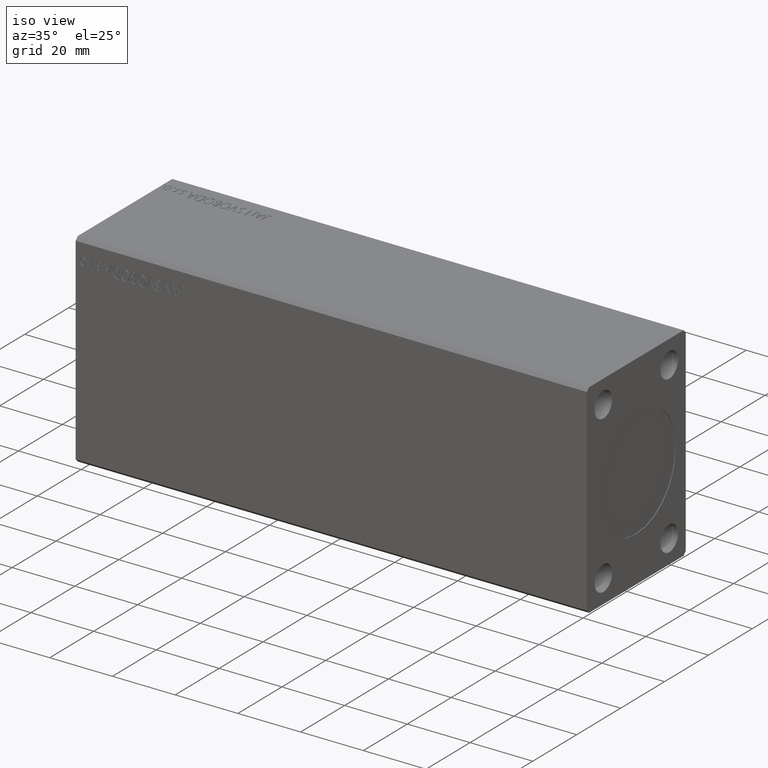
[diagram: clean part render]
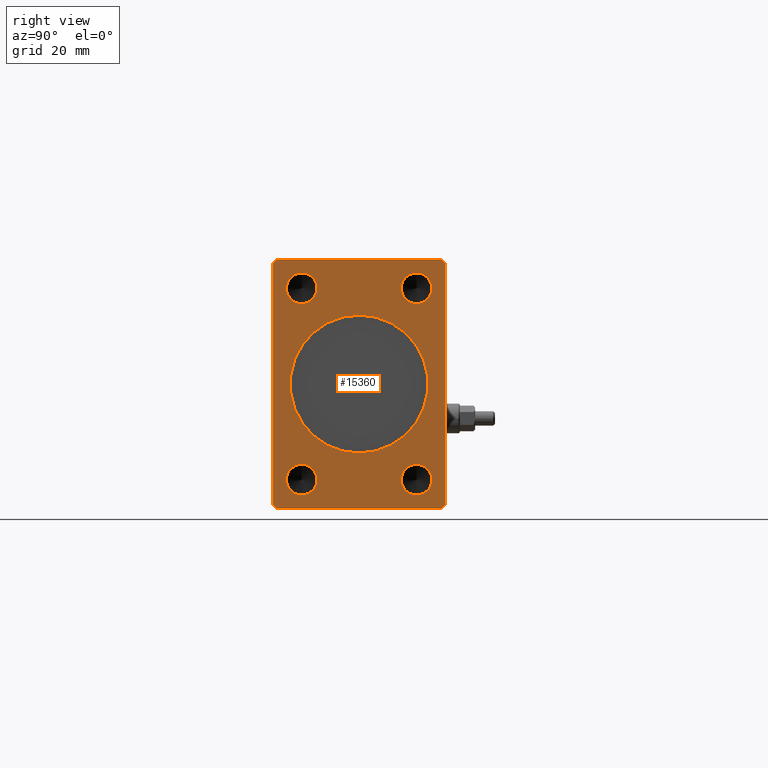
[diagram: tour spotlight — one face highlighted and labeled with its STEP entity id]
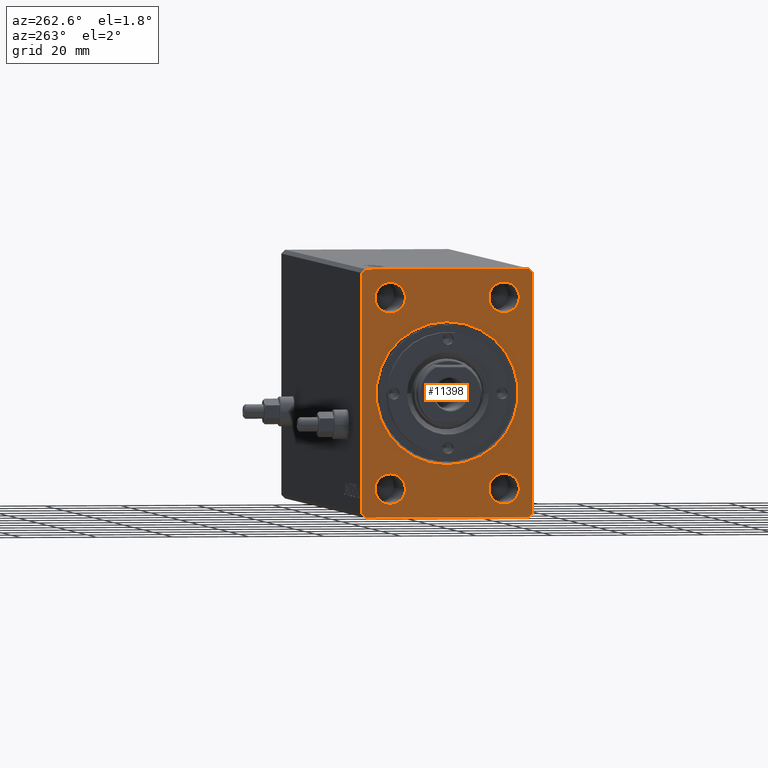
[diagram: tour spotlight — one face highlighted and labeled with its STEP entity id]
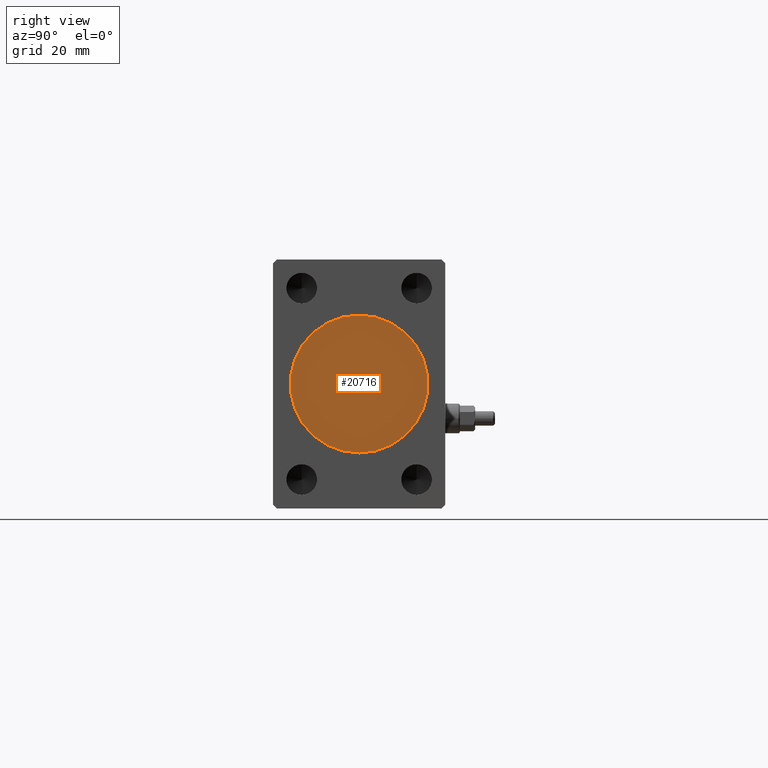
[diagram: tour spotlight — one face highlighted and labeled with its STEP entity id]
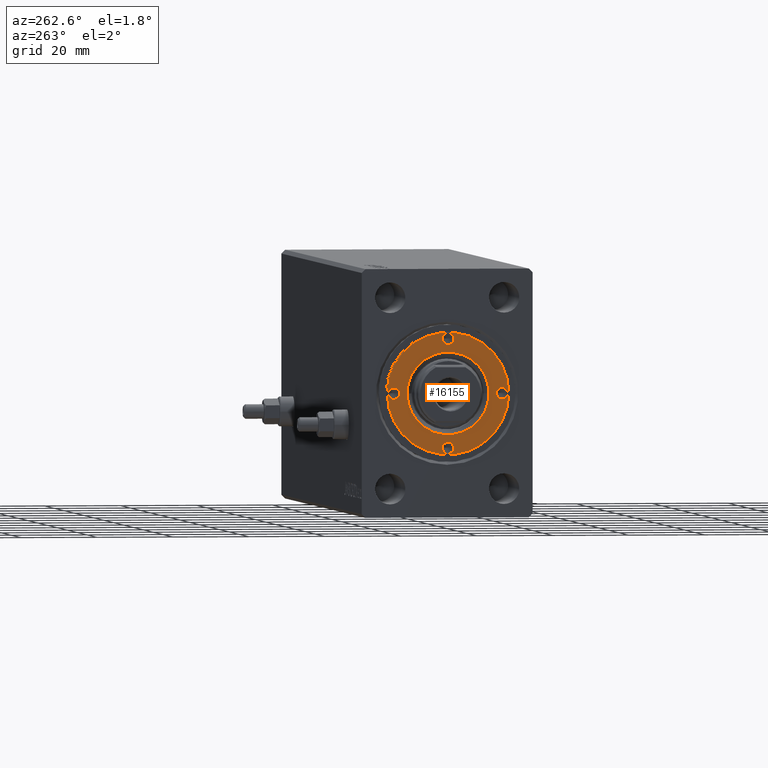
[diagram: tour spotlight — one face highlighted and labeled with its STEP entity id]
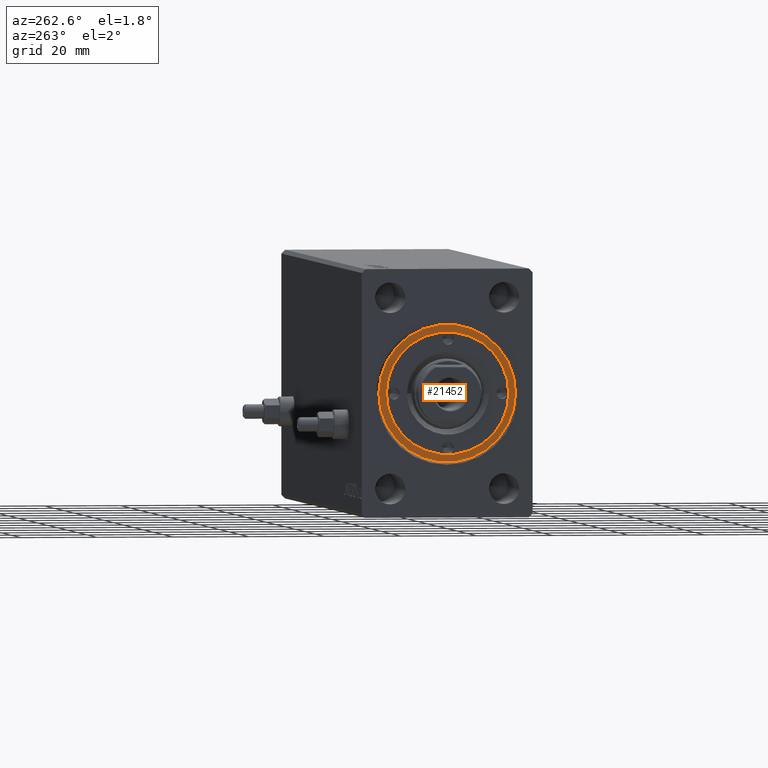
[diagram: tour spotlight — one face highlighted and labeled with its STEP entity id]
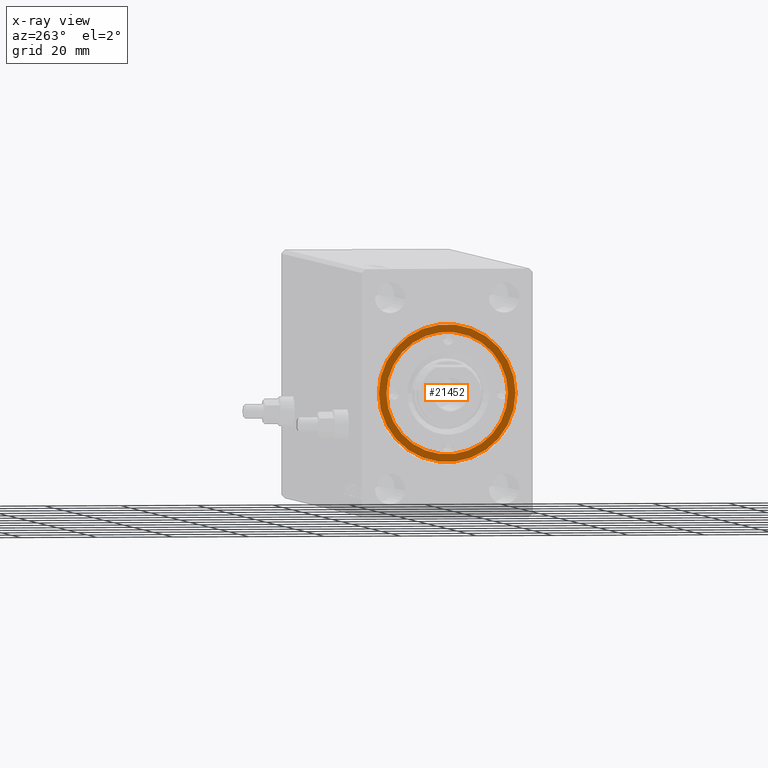
[diagram: x-ray of the same camera — body ghosted, this tour face saturated]
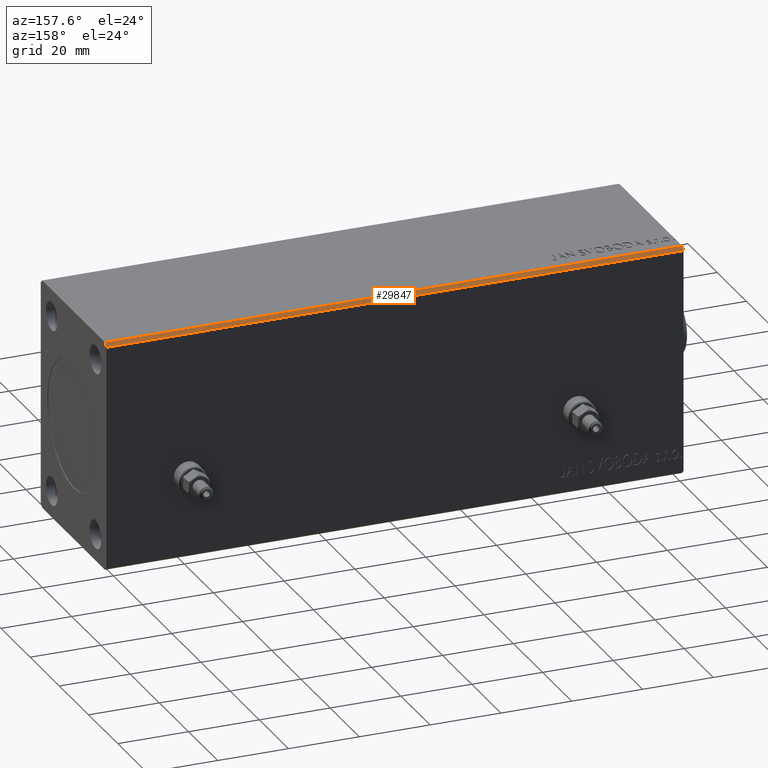
[diagram: tour spotlight — one face highlighted and labeled with its STEP entity id]
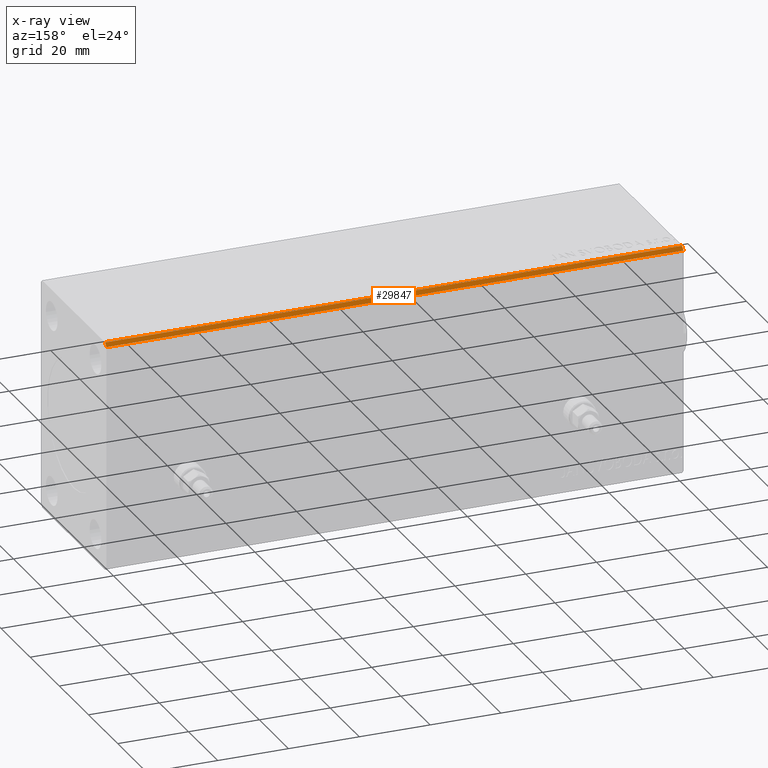
[diagram: x-ray of the same camera — body ghosted, this tour face saturated]
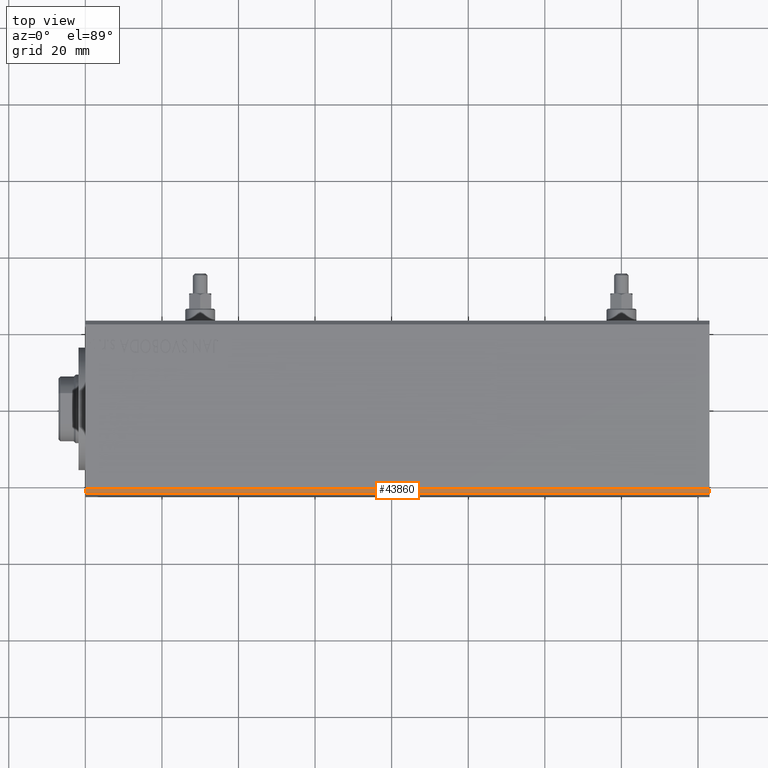
[diagram: tour spotlight — one face highlighted and labeled with its STEP entity id]
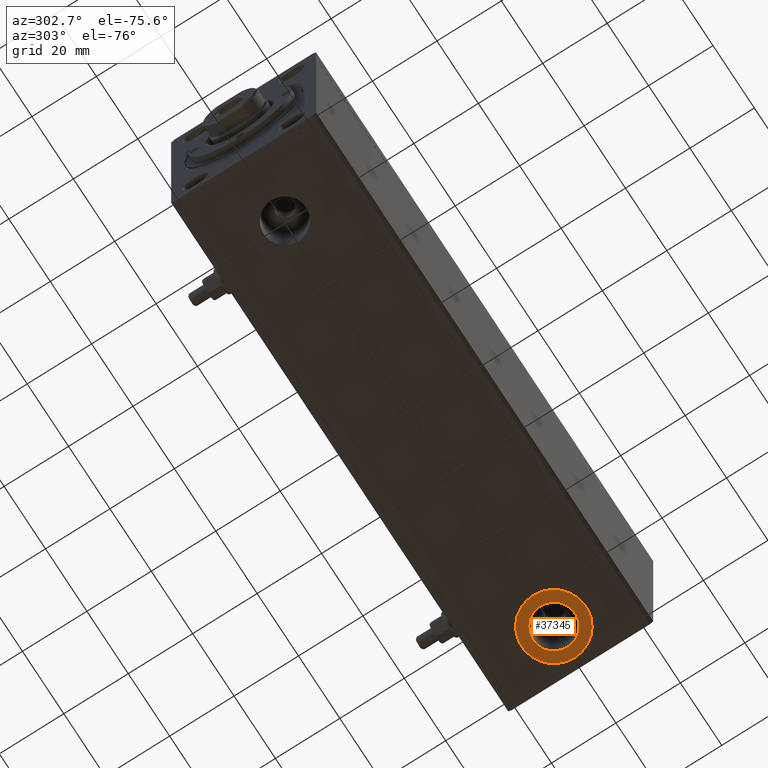
[diagram: tour spotlight — one face highlighted and labeled with its STEP entity id]
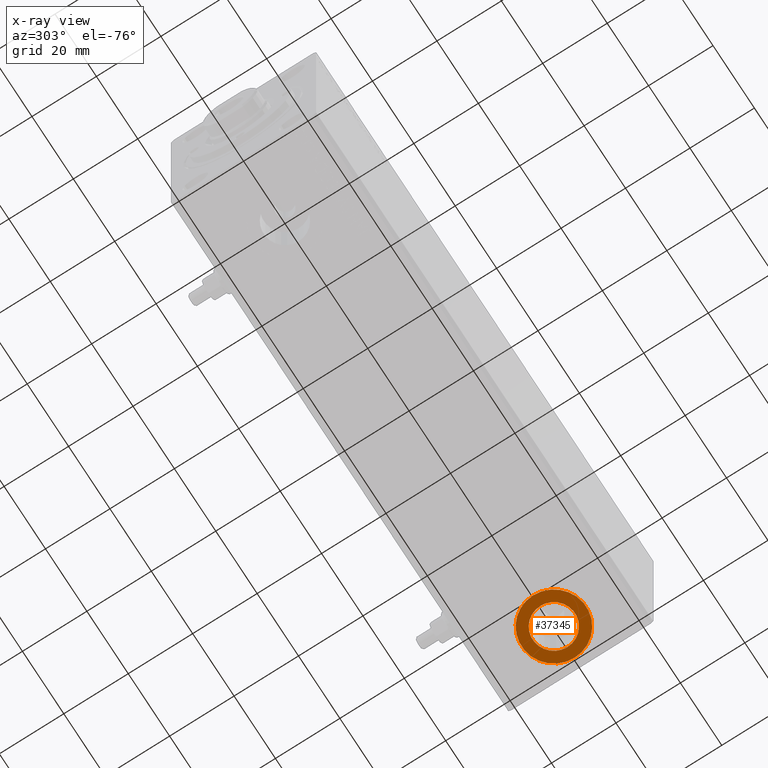
[diagram: x-ray of the same camera — body ghosted, this tour face saturated]
A machine part: a face-by-face anatomy tour. The part has 933 B-rep faces; the first image is the clean iso view, then the 8 largest visible faces are spotlighted one at a time (largest first), each with its STEP entity span.

Face 1 — right view, entity #15360. In plain terms, the highlighted planar face has unit normal (1, 0, 0).
Definition (entity closure, byte-faithful):
#272 = LINE ( 'NONE', #28179, #38445 ) ;
#562 = CARTESIAN_POINT ( 'NONE',  ( 163.0000000000000000, -21.50000000000001421, 32.50000000000000000 ) ) ;
#1446 = VERTEX_POINT ( 'NONE', #31196 ) ;
#1531 = EDGE_CURVE ( 'NONE', #7964, #17980, #14238, .T. ) ;
#1664 = CARTESIAN_POINT ( 'NONE',  ( 163.0000000000000000, -14.99999999999999645, -20.99999999999999645 ) ) ;
#1762 = FACE_BOUND ( 'NONE', #39208, .T. ) ;
#2105 = ORIENTED_EDGE ( 'NONE', *, *, #7822, .T. ) ;
#2388 = CARTESIAN_POINT ( 'NONE',  ( 163.0000000000000000, -22.50000000000001421, -31.50000000000000711 ) ) ;
#2528 = CARTESIAN_POINT ( 'NONE',  ( 163.0000000000000000, -14.99999999999999645, -24.99999999999999645 ) ) ;
#2748 = ORIENTED_EDGE ( 'NONE', *, *, #10664, .F. ) ;
#3459 = VERTEX_POINT ( 'NONE', #3711 ) ;
#3643 = DIRECTION ( 'NONE',  ( 1.000000000000000000, -0.000000000000000000, -0.000000000000000000 ) ) ;
#3655 = DIRECTION ( 'NONE',  ( 0.000000000000000000, 0.000000000000000000, -1.000000000000000000 ) ) ;
#3711 = CARTESIAN_POINT ( 'NONE',  ( 163.0000000000000000, 0.000000000000000000, -18.00000000000000000 ) ) ;
#4008 = AXIS2_PLACEMENT_3D ( 'NONE', #4457, #15657, #28918 ) ;
#4094 = CARTESIAN_POINT ( 'NONE',  ( 163.0000000000000000, -14.99999999999999645, 24.99999999999999645 ) ) ;
#4457 = CARTESIAN_POINT ( 'NONE',  ( 163.0000000000000000, -14.99999999999999645, -24.99999999999999645 ) ) ;
#4972 = DIRECTION ( 'NONE',  ( 1.000000000000000000, 0.000000000000000000, 0.000000000000000000 ) ) ;
#5028 = CARTESIAN_POINT ( 'NONE',  ( 163.0000000000000000, 15.00000000000000355, -28.99999999999999289 ) ) ;
#5190 = FACE_BOUND ( 'NONE', #18384, .T. ) ;
#5835 = CARTESIAN_POINT ( 'NONE',  ( 163.0000000000000000, 15.00000000000000355, 21.00000000000000000 ) ) ;
#7025 = EDGE_LOOP ( 'NONE', ( #39852, #25468 ) ) ;
#7770 = CARTESIAN_POINT ( 'NONE',  ( 163.0000000000000000, 15.00000000000000355, -24.99999999999999289 ) ) ;
#7796 = DIRECTION ( 'NONE',  ( 0.000000000000000000, 0.000000000000000000, -1.000000000000000000 ) ) ;
#7822 = EDGE_CURVE ( 'NONE', #18668, #38071, #41678, .T. ) ;
#7918 = AXIS2_PLACEMENT_3D ( 'NONE', #23977, #13467, #30820 ) ;
#7964 = VERTEX_POINT ( 'NONE', #1664 ) ;
#8239 = VECTOR ( 'NONE', #13212, 1000.000000000000114 ) ;
#8264 = DIRECTION ( 'NONE',  ( 0.000000000000000000, 0.000000000000000000, -1.000000000000000000 ) ) ;
#8591 = CARTESIAN_POINT ( 'NONE',  ( 163.0000000000000000, -14.99999999999999645, 28.99999999999999645 ) ) ;
#8887 = DIRECTION ( 'NONE',  ( 0.000000000000000000, 0.000000000000000000, -1.000000000000000000 ) ) ;
#9069 = DIRECTION ( 'NONE',  ( 0.000000000000000000, 0.000000000000000000, -1.000000000000000000 ) ) ;
#9429 = DIRECTION ( 'NONE',  ( 1.000000000000000000, -0.000000000000000000, -0.000000000000000000 ) ) ;
#9544 = CARTESIAN_POINT ( 'NONE',  ( 163.0000000000000000, 22.49999999999999645, -31.50000000000000000 ) ) ;
#9749 = DIRECTION ( 'NONE',  ( 0.000000000000000000, -0.7071067811865474617, -0.7071067811865474617 ) ) ;
#10177 = CIRCLE ( 'NONE', #31287, 4.000000000000000000 ) ;
#10495 = ORIENTED_EDGE ( 'NONE', *, *, #27084, .T. ) ;
#10662 = CARTESIAN_POINT ( 'NONE',  ( 163.0000000000000000, 21.49999999999999645, -32.50000000000000000 ) ) ;
#10664 = EDGE_CURVE ( 'NONE', #38673, #3459, #40600, .T. ) ;
#11038 = AXIS2_PLACEMENT_3D ( 'NONE', #18557, #39106, #8264 ) ;
#11592 = CIRCLE ( 'NONE', #7918, 4.000000000000000000 ) ;
#11806 = CIRCLE ( 'NONE', #11038, 4.000000000000000000 ) ;
#12056 = CIRCLE ( 'NONE', #37561, 4.000000000000000000 ) ;
#12065 = CARTESIAN_POINT ( 'NONE',  ( 163.0000000000000000, 0.000000000000000000, 0.000000000000000000 ) ) ;
#12423 = ORIENTED_EDGE ( 'NONE', *, *, #27405, .F. ) ;
#13061 = AXIS2_PLACEMENT_3D ( 'NONE', #2528, #20588, #19914 ) ;
#13212 = DIRECTION ( 'NONE',  ( 0.000000000000000000, 0.7071067811865474617, 0.7071067811865474617 ) ) ;
#13283 = EDGE_CURVE ( 'NONE', #20789, #37569, #37141, .T. ) ;
#13425 = LINE ( 'NONE', #33743, #8239 ) ;
#13429 = VERTEX_POINT ( 'NONE', #25264 ) ;
#13432 = VERTEX_POINT ( 'NONE', #562 ) ;
#13467 = DIRECTION ( 'NONE',  ( 1.000000000000000000, -0.000000000000000000, -0.000000000000000000 ) ) ;
#13619 = CARTESIAN_POINT ( 'NONE',  ( 163.0000000000000000, 15.00000000000000355, 25.00000000000000000 ) ) ;
#13843 = ORIENTED_EDGE ( 'NONE', *, *, #35653, .T. ) ;
#13921 = CARTESIAN_POINT ( 'NONE',  ( 163.0000000000000000, -14.99999999999999645, 20.99999999999999645 ) ) ;
#14238 = CIRCLE ( 'NONE', #4008, 4.000000000000000000 ) ;
#14667 = EDGE_CURVE ( 'NONE', #13429, #38702, #24984, .T. ) ;
#15177 = CARTESIAN_POINT ( 'NONE',  ( 163.0000000000000000, -21.50000000000001776, -32.50000000000000711 ) ) ;
#15360 = ADVANCED_FACE ( 'NONE', ( #39704, #19367, #5190, #1762, #36933, #43137 ), #29864, .T. ) ;
#15627 = LINE ( 'NONE', #29118, #38737 ) ;
#15645 = AXIS2_PLACEMENT_3D ( 'NONE', #30435, #9429, #16504 ) ;
#15657 = DIRECTION ( 'NONE',  ( 1.000000000000000000, -0.000000000000000000, -0.000000000000000000 ) ) ;
#16157 = DIRECTION ( 'NONE',  ( 0.000000000000000000, 0.000000000000000000, -1.000000000000000000 ) ) ;
#16504 = DIRECTION ( 'NONE',  ( 0.000000000000000000, 0.000000000000000000, -1.000000000000000000 ) ) ;
#16914 = EDGE_CURVE ( 'NONE', #17980, #7964, #18905, .T. ) ;
#16970 = ORIENTED_EDGE ( 'NONE', *, *, #13283, .T. ) ;
#17351 = ORIENTED_EDGE ( 'NONE', *, *, #14667, .T. ) ;
#17389 = CARTESIAN_POINT ( 'NONE',  ( 163.0000000000000000, 22.49999999999999645, 31.50000000000000000 ) ) ;
#17715 = CARTESIAN_POINT ( 'NONE',  ( 163.0000000000000000, -21.50000000000001776, -32.50000000000000711 ) ) ;
#17980 = VERTEX_POINT ( 'NONE', #22745 ) ;
#18134 = VECTOR ( 'NONE', #9749, 1000.000000000000114 ) ;
#18149 = CARTESIAN_POINT ( 'NONE',  ( 163.0000000000000000, 22.49999999999999645, 31.50000000000000000 ) ) ;
#18384 = EDGE_LOOP ( 'NONE', ( #27700, #31624 ) ) ;
#18557 = CARTESIAN_POINT ( 'NONE',  ( 163.0000000000000000, -14.99999999999999645, 24.99999999999999645 ) ) ;
#18668 = VERTEX_POINT ( 'NONE', #17389 ) ;
#18807 = VECTOR ( 'NONE', #45116, 1000.000000000000000 ) ;
#18905 = CIRCLE ( 'NONE', #13061, 4.000000000000000000 ) ;
#19167 = CARTESIAN_POINT ( 'NONE',  ( 163.0000000000000000, 15.00000000000000355, -20.99999999999999289 ) ) ;
#19367 = FACE_BOUND ( 'NONE', #29056, .T. ) ;
#19914 = DIRECTION ( 'NONE',  ( 0.000000000000000000, 0.000000000000000000, -1.000000000000000000 ) ) ;
#20588 = DIRECTION ( 'NONE',  ( 1.000000000000000000, -0.000000000000000000, -0.000000000000000000 ) ) ;
#20789 = VERTEX_POINT ( 'NONE', #15177 ) ;
#21551 = CARTESIAN_POINT ( 'NONE',  ( 163.0000000000000000, -22.50000000000001776, 31.50000000000000000 ) ) ;
#21640 = ORIENTED_EDGE ( 'NONE', *, *, #41940, .F. ) ;
#22420 = EDGE_CURVE ( 'NONE', #31613, #44129, #11806, .T. ) ;
#22745 = CARTESIAN_POINT ( 'NONE',  ( 163.0000000000000000, -14.99999999999999645, -28.99999999999999645 ) ) ;
#22826 = EDGE_CURVE ( 'NONE', #1446, #34148, #38017, .T. ) ;
#23673 = DIRECTION ( 'NONE',  ( 1.000000000000000000, -0.000000000000000000, -0.000000000000000000 ) ) ;
#23977 = CARTESIAN_POINT ( 'NONE',  ( 163.0000000000000000, 15.00000000000000355, 25.00000000000000000 ) ) ;
#24364 = LINE ( 'NONE', #38057, #18134 ) ;
#24456 = DIRECTION ( 'NONE',  ( 0.000000000000000000, 0.000000000000000000, -1.000000000000000000 ) ) ;
#24622 = ORIENTED_EDGE ( 'NONE', *, *, #22826, .F. ) ;
#24752 = DIRECTION ( 'NONE',  ( 0.000000000000000000, 0.7071067811865451302, -0.7071067811865500152 ) ) ;
#24984 = LINE ( 'NONE', #21551, #36334 ) ;
#25264 = CARTESIAN_POINT ( 'NONE',  ( 163.0000000000000000, -22.50000000000001776, 31.50000000000000000 ) ) ;
#25468 = ORIENTED_EDGE ( 'NONE', *, *, #22420, .F. ) ;
#25697 = EDGE_CURVE ( 'NONE', #45060, #18668, #15627, .T. ) ;
#26082 = VECTOR ( 'NONE', #38242, 1000.000000000000114 ) ;
#27084 = EDGE_CURVE ( 'NONE', #37569, #45060, #13425, .T. ) ;
#27405 = EDGE_CURVE ( 'NONE', #3459, #38673, #29380, .T. ) ;
#27700 = ORIENTED_EDGE ( 'NONE', *, *, #16914, .F. ) ;
#27810 = VERTEX_POINT ( 'NONE', #19167 ) ;
#28179 = CARTESIAN_POINT ( 'NONE',  ( 163.0000000000000000, -22.50000000000001421, -31.50000000000000711 ) ) ;
#28661 = AXIS2_PLACEMENT_3D ( 'NONE', #41833, #38408, #7796 ) ;
#28918 = DIRECTION ( 'NONE',  ( 0.000000000000000000, 0.000000000000000000, -1.000000000000000000 ) ) ;
#29056 = EDGE_LOOP ( 'NONE', ( #33296, #24622 ) ) ;
#29118 = CARTESIAN_POINT ( 'NONE',  ( 163.0000000000000000, 22.49999999999999645, -31.50000000000000000 ) ) ;
#29380 = CIRCLE ( 'NONE', #28661, 18.00000000000000000 ) ;
#29864 = PLANE ( 'NONE',  #42924 ) ;
#30435 = CARTESIAN_POINT ( 'NONE',  ( 163.0000000000000000, 15.00000000000000355, -24.99999999999999289 ) ) ;
#30820 = DIRECTION ( 'NONE',  ( 0.000000000000000000, 0.000000000000000000, -1.000000000000000000 ) ) ;
#31196 = CARTESIAN_POINT ( 'NONE',  ( 163.0000000000000000, 15.00000000000000355, 29.00000000000000000 ) ) ;
#31287 = AXIS2_PLACEMENT_3D ( 'NONE', #7770, #34958, #3655 ) ;
#31613 = VERTEX_POINT ( 'NONE', #8591 ) ;
#31624 = ORIENTED_EDGE ( 'NONE', *, *, #1531, .F. ) ;
#33296 = ORIENTED_EDGE ( 'NONE', *, *, #44138, .F. ) ;
#33743 = CARTESIAN_POINT ( 'NONE',  ( 163.0000000000000000, 21.49999999999999645, -32.50000000000000000 ) ) ;
#34148 = VERTEX_POINT ( 'NONE', #5835 ) ;
#34482 = ORIENTED_EDGE ( 'NONE', *, *, #43692, .T. ) ;
#34958 = DIRECTION ( 'NONE',  ( 1.000000000000000000, -0.000000000000000000, -0.000000000000000000 ) ) ;
#35120 = EDGE_CURVE ( 'NONE', #38702, #20789, #272, .T. ) ;
#35653 = EDGE_CURVE ( 'NONE', #38071, #13432, #38003, .T. ) ;
#36235 = AXIS2_PLACEMENT_3D ( 'NONE', #12065, #43565, #9069 ) ;
#36334 = VECTOR ( 'NONE', #42555, 1000.000000000000000 ) ;
#36933 = FACE_BOUND ( 'NONE', #7025, .T. ) ;
#37076 = VERTEX_POINT ( 'NONE', #5028 ) ;
#37141 = LINE ( 'NONE', #17715, #18807 ) ;
#37497 = CIRCLE ( 'NONE', #15645, 4.000000000000000000 ) ;
#37561 = AXIS2_PLACEMENT_3D ( 'NONE', #4094, #3643, #24456 ) ;
#37569 = VERTEX_POINT ( 'NONE', #10662 ) ;
#38003 = LINE ( 'NONE', #44854, #39926 ) ;
#38017 = CIRCLE ( 'NONE', #43123, 4.000000000000000000 ) ;
#38057 = CARTESIAN_POINT ( 'NONE',  ( 163.0000000000000000, -21.50000000000001421, 32.50000000000000000 ) ) ;
#38071 = VERTEX_POINT ( 'NONE', #40713 ) ;
#38092 = EDGE_CURVE ( 'NONE', #37076, #27810, #37497, .T. ) ;
#38227 = DIRECTION ( 'NONE',  ( 0.000000000000000000, -1.000000000000000000, 0.000000000000000000 ) ) ;
#38242 = DIRECTION ( 'NONE',  ( 0.000000000000000000, -0.7071067811865474617, 0.7071067811865474617 ) ) ;
#38408 = DIRECTION ( 'NONE',  ( 1.000000000000000000, 0.000000000000000000, 0.000000000000000000 ) ) ;
#38445 = VECTOR ( 'NONE', #24752, 1000.000000000000114 ) ;
#38673 = VERTEX_POINT ( 'NONE', #44651 ) ;
#38702 = VERTEX_POINT ( 'NONE', #2388 ) ;
#38737 = VECTOR ( 'NONE', #43705, 1000.000000000000000 ) ;
#39106 = DIRECTION ( 'NONE',  ( 1.000000000000000000, -0.000000000000000000, -0.000000000000000000 ) ) ;
#39148 = ORIENTED_EDGE ( 'NONE', *, *, #38092, .F. ) ;
#39149 = ORIENTED_EDGE ( 'NONE', *, *, #25697, .T. ) ;
#39208 = EDGE_LOOP ( 'NONE', ( #39148, #21640 ) ) ;
#39406 = ORIENTED_EDGE ( 'NONE', *, *, #35120, .T. ) ;
#39704 = FACE_BOUND ( 'NONE', #41169, .T. ) ;
#39852 = ORIENTED_EDGE ( 'NONE', *, *, #41003, .F. ) ;
#39926 = VECTOR ( 'NONE', #38227, 1000.000000000000000 ) ;
#40600 = CIRCLE ( 'NONE', #36235, 18.00000000000000000 ) ;
#40713 = CARTESIAN_POINT ( 'NONE',  ( 163.0000000000000000, 21.49999999999999645, 32.50000000000000000 ) ) ;
#41003 = EDGE_CURVE ( 'NONE', #44129, #31613, #12056, .T. ) ;
#41169 = EDGE_LOOP ( 'NONE', ( #12423, #2748 ) ) ;
#41678 = LINE ( 'NONE', #18149, #26082 ) ;
#41833 = CARTESIAN_POINT ( 'NONE',  ( 163.0000000000000000, 0.000000000000000000, 0.000000000000000000 ) ) ;
#41940 = EDGE_CURVE ( 'NONE', #27810, #37076, #10177, .T. ) ;
#42555 = DIRECTION ( 'NONE',  ( 0.000000000000000000, 5.507058653894625853E-17, -1.000000000000000000 ) ) ;
#42924 = AXIS2_PLACEMENT_3D ( 'NONE', #43792, #4972, #16157 ) ;
#43104 = EDGE_LOOP ( 'NONE', ( #2105, #13843, #34482, #17351, #39406, #16970, #10495, #39149 ) ) ;
#43123 = AXIS2_PLACEMENT_3D ( 'NONE', #13619, #23673, #8887 ) ;
#43137 = FACE_OUTER_BOUND ( 'NONE', #43104, .T. ) ;
#43565 = DIRECTION ( 'NONE',  ( 1.000000000000000000, 0.000000000000000000, 0.000000000000000000 ) ) ;
#43692 = EDGE_CURVE ( 'NONE', #13432, #13429, #24364, .T. ) ;
#43705 = DIRECTION ( 'NONE',  ( 0.000000000000000000, 0.000000000000000000, 1.000000000000000000 ) ) ;
#43792 = CARTESIAN_POINT ( 'NONE',  ( 163.0000000000000000, 0.000000000000000000, 0.000000000000000000 ) ) ;
#44129 = VERTEX_POINT ( 'NONE', #13921 ) ;
#44138 = EDGE_CURVE ( 'NONE', #34148, #1446, #11592, .T. ) ;
#44651 = CARTESIAN_POINT ( 'NONE',  ( 163.0000000000000000, 2.204364238465235428E-15, 18.00000000000000000 ) ) ;
#44854 = CARTESIAN_POINT ( 'NONE',  ( 163.0000000000000000, 21.49999999999999645, 32.50000000000000000 ) ) ;
#45060 = VERTEX_POINT ( 'NONE', #9544 ) ;
#45116 = DIRECTION ( 'NONE',  ( 0.000000000000000000, 1.000000000000000000, 1.613696256722610912E-16 ) ) ;

Face 2 — auxiliary view, entity #11398. In plain terms, the highlighted planar face has unit normal (1, 0, 0).
Definition (entity closure, byte-faithful):
#248 = DIRECTION ( 'NONE',  ( 0.000000000000000000, 1.000000000000000000, 1.613696256722610912E-16 ) ) ;
#516 = VECTOR ( 'NONE', #3695, 1000.000000000000000 ) ;
#820 = EDGE_LOOP ( 'NONE', ( #26715, #39710 ) ) ;
#1116 = LINE ( 'NONE', #18729, #2017 ) ;
#1877 = CARTESIAN_POINT ( 'NONE',  ( 3.061616997868395467E-16, -14.99999999999999645, 24.99999999999999645 ) ) ;
#2017 = VECTOR ( 'NONE', #32645, 1000.000000000000114 ) ;
#2093 = DIRECTION ( 'NONE',  ( 0.000000000000000000, 0.000000000000000000, -1.000000000000000000 ) ) ;
#2167 = DIRECTION ( 'NONE',  ( 0.000000000000000000, 0.000000000000000000, 1.000000000000000000 ) ) ;
#2722 = CARTESIAN_POINT ( 'NONE',  ( 3.061616997868395467E-16, -14.99999999999999645, -24.99999999999999645 ) ) ;
#2766 = EDGE_CURVE ( 'NONE', #21407, #44328, #31014, .T. ) ;
#3165 = CARTESIAN_POINT ( 'NONE',  ( -1.084202172485504434E-16, 2.290089514405546166E-15, -18.69999999999996732 ) ) ;
#3178 = ORIENTED_EDGE ( 'NONE', *, *, #5528, .F. ) ;
#3221 = CIRCLE ( 'NONE', #30196, 4.000000000000000000 ) ;
#3520 = ORIENTED_EDGE ( 'NONE', *, *, #32746, .F. ) ;
#3695 = DIRECTION ( 'NONE',  ( 0.000000000000000000, 5.507058653894625853E-17, -1.000000000000000000 ) ) ;
#4095 = DIRECTION ( 'NONE',  ( -1.000000000000000000, -0.000000000000000000, -0.000000000000000000 ) ) ;
#4268 = VERTEX_POINT ( 'NONE', #31810 ) ;
#4379 = LINE ( 'NONE', #7130, #516 ) ;
#4672 = ORIENTED_EDGE ( 'NONE', *, *, #9500, .F. ) ;
#5021 = AXIS2_PLACEMENT_3D ( 'NONE', #30588, #13246, #37208 ) ;
#5448 = CARTESIAN_POINT ( 'NONE',  ( 0.000000000000000000, 22.49999999999999645, -31.50000000000000000 ) ) ;
#5474 = LINE ( 'NONE', #26973, #7633 ) ;
#5515 = FACE_BOUND ( 'NONE', #13683, .T. ) ;
#5528 = EDGE_CURVE ( 'NONE', #39207, #15893, #21647, .T. ) ;
#5927 = EDGE_LOOP ( 'NONE', ( #23516, #37531 ) ) ;
#6197 = DIRECTION ( 'NONE',  ( 1.000000000000000000, 0.000000000000000000, 0.000000000000000000 ) ) ;
#6464 = VERTEX_POINT ( 'NONE', #35584 ) ;
#7112 = VERTEX_POINT ( 'NONE', #20313 ) ;
#7130 = CARTESIAN_POINT ( 'NONE',  ( 0.000000000000000000, -22.50000000000001776, 31.50000000000000000 ) ) ;
#7633 = VECTOR ( 'NONE', #19663, 1000.000000000000114 ) ;
#7772 = EDGE_CURVE ( 'NONE', #10129, #18666, #4379, .T. ) ;
#8159 = CIRCLE ( 'NONE', #24214, 4.000000000000000000 ) ;
#8329 = AXIS2_PLACEMENT_3D ( 'NONE', #39381, #28876, #32289 ) ;
#8408 = EDGE_CURVE ( 'NONE', #19275, #14167, #41284, .T. ) ;
#9188 = DIRECTION ( 'NONE',  ( 1.000000000000000000, 0.000000000000000000, 0.000000000000000000 ) ) ;
#9284 = CARTESIAN_POINT ( 'NONE',  ( 3.061616997868395467E-16, -14.99999999999999645, 24.99999999999999645 ) ) ;
#9500 = EDGE_CURVE ( 'NONE', #19007, #31116, #1116, .T. ) ;
#9719 = CARTESIAN_POINT ( 'NONE',  ( 3.061616997868395467E-16, -14.99999999999999645, -20.99999999999999645 ) ) ;
#9822 = LINE ( 'NONE', #29930, #20940 ) ;
#10129 = VERTEX_POINT ( 'NONE', #31685 ) ;
#10492 = CIRCLE ( 'NONE', #41128, 18.69999999999996732 ) ;
#10793 = LINE ( 'NONE', #18098, #37263 ) ;
#11337 = CARTESIAN_POINT ( 'NONE',  ( 0.000000000000000000, 21.49999999999999645, -32.50000000000000000 ) ) ;
#11398 = ADVANCED_FACE ( 'NONE', ( #44125, #5515, #27016, #43901, #33622, #23587 ), #37493, .F. ) ;
#11750 = DIRECTION ( 'NONE',  ( 0.000000000000000000, 0.000000000000000000, 1.000000000000000000 ) ) ;
#12055 = DIRECTION ( 'NONE',  ( 0.000000000000000000, -0.7071067811865474617, -0.7071067811865474617 ) ) ;
#12196 = EDGE_CURVE ( 'NONE', #15893, #39207, #32617, .T. ) ;
#12478 = DIRECTION ( 'NONE',  ( -1.000000000000000000, -0.000000000000000000, -0.000000000000000000 ) ) ;
#12514 = EDGE_CURVE ( 'NONE', #31116, #14565, #9822, .T. ) ;
#12581 = DIRECTION ( 'NONE',  ( 0.000000000000000000, -1.000000000000000000, 0.000000000000000000 ) ) ;
#12715 = CARTESIAN_POINT ( 'NONE',  ( 0.000000000000000000, -21.50000000000001776, -32.50000000000000711 ) ) ;
#12801 = CARTESIAN_POINT ( 'NONE',  ( 0.000000000000000000, 21.49999999999999645, 32.50000000000000000 ) ) ;
#13216 = VERTEX_POINT ( 'NONE', #12715 ) ;
#13246 = DIRECTION ( 'NONE',  ( 1.000000000000000000, 0.000000000000000000, 0.000000000000000000 ) ) ;
#13648 = AXIS2_PLACEMENT_3D ( 'NONE', #1877, #15835, #11750 ) ;
#13662 = CARTESIAN_POINT ( 'NONE',  ( 0.000000000000000000, 21.49999999999999645, -32.50000000000000000 ) ) ;
#13683 = EDGE_LOOP ( 'NONE', ( #3520, #37226 ) ) ;
#13792 = CARTESIAN_POINT ( 'NONE',  ( 3.061616997868395467E-16, -14.99999999999999645, 20.99999999999999645 ) ) ;
#14167 = VERTEX_POINT ( 'NONE', #5448 ) ;
#14565 = VERTEX_POINT ( 'NONE', #22015 ) ;
#15680 = CARTESIAN_POINT ( 'NONE',  ( 3.061616997868395467E-16, -14.99999999999999645, -24.99999999999999645 ) ) ;
#15835 = DIRECTION ( 'NONE',  ( -1.000000000000000000, -0.000000000000000000, -0.000000000000000000 ) ) ;
#15893 = VERTEX_POINT ( 'NONE', #13792 ) ;
#15925 = CARTESIAN_POINT ( 'NONE',  ( 0.000000000000000000, 22.49999999999999645, -31.50000000000000000 ) ) ;
#16232 = DIRECTION ( 'NONE',  ( -1.000000000000000000, -0.000000000000000000, -0.000000000000000000 ) ) ;
#16366 = LINE ( 'NONE', #15925, #21861 ) ;
#16641 = ORIENTED_EDGE ( 'NONE', *, *, #29921, .T. ) ;
#17189 = EDGE_CURVE ( 'NONE', #6464, #44137, #44415, .T. ) ;
#17261 = CIRCLE ( 'NONE', #20908, 4.000000000000000000 ) ;
#18056 = DIRECTION ( 'NONE',  ( 0.000000000000000000, 0.000000000000000000, 1.000000000000000000 ) ) ;
#18098 = CARTESIAN_POINT ( 'NONE',  ( 0.000000000000000000, -21.50000000000001776, -32.50000000000000711 ) ) ;
#18273 = CARTESIAN_POINT ( 'NONE',  ( 3.061616997868395467E-16, 15.00000000000000355, -20.99999999999999289 ) ) ;
#18507 = DIRECTION ( 'NONE',  ( -1.000000000000000000, -0.000000000000000000, -0.000000000000000000 ) ) ;
#18666 = VERTEX_POINT ( 'NONE', #30867 ) ;
#18729 = CARTESIAN_POINT ( 'NONE',  ( 0.000000000000000000, 22.49999999999999645, 31.50000000000000000 ) ) ;
#19007 = VERTEX_POINT ( 'NONE', #41547 ) ;
#19171 = AXIS2_PLACEMENT_3D ( 'NONE', #22653, #16232, #30154 ) ;
#19275 = VERTEX_POINT ( 'NONE', #11337 ) ;
#19442 = CARTESIAN_POINT ( 'NONE',  ( 3.061616997868395467E-16, -14.99999999999999645, 28.99999999999999645 ) ) ;
#19663 = DIRECTION ( 'NONE',  ( 0.000000000000000000, 0.7071067811865451302, -0.7071067811865500152 ) ) ;
#20313 = CARTESIAN_POINT ( 'NONE',  ( 3.061616997868395467E-16, 15.00000000000000355, 21.00000000000000000 ) ) ;
#20908 = AXIS2_PLACEMENT_3D ( 'NONE', #15680, #12478, #2167 ) ;
#20940 = VECTOR ( 'NONE', #12581, 1000.000000000000000 ) ;
#21407 = VERTEX_POINT ( 'NONE', #18273 ) ;
#21428 = LINE ( 'NONE', #29415, #24927 ) ;
#21647 = CIRCLE ( 'NONE', #32555, 4.000000000000000000 ) ;
#21861 = VECTOR ( 'NONE', #30525, 1000.000000000000000 ) ;
#22015 = CARTESIAN_POINT ( 'NONE',  ( 0.000000000000000000, -21.50000000000001421, 32.50000000000000000 ) ) ;
#22244 = CARTESIAN_POINT ( 'NONE',  ( 0.000000000000000000, 0.000000000000000000, 0.000000000000000000 ) ) ;
#22653 = CARTESIAN_POINT ( 'NONE',  ( 3.061616997868395467E-16, 15.00000000000000355, 25.00000000000000000 ) ) ;
#23229 = DIRECTION ( 'NONE',  ( 0.000000000000000000, 0.000000000000000000, 1.000000000000000000 ) ) ;
#23516 = ORIENTED_EDGE ( 'NONE', *, *, #2766, .F. ) ;
#23517 = EDGE_CURVE ( 'NONE', #44328, #21407, #8159, .T. ) ;
#23587 = FACE_OUTER_BOUND ( 'NONE', #32058, .T. ) ;
#23812 = CARTESIAN_POINT ( 'NONE',  ( 0.000000000000000000, 0.000000000000000000, 0.000000000000000000 ) ) ;
#23906 = EDGE_CURVE ( 'NONE', #14565, #10129, #21428, .T. ) ;
#24214 = AXIS2_PLACEMENT_3D ( 'NONE', #27441, #4095, #18056 ) ;
#24927 = VECTOR ( 'NONE', #12055, 1000.000000000000114 ) ;
#25833 = EDGE_CURVE ( 'NONE', #13216, #19275, #10793, .T. ) ;
#25911 = ORIENTED_EDGE ( 'NONE', *, *, #8408, .F. ) ;
#26201 = ORIENTED_EDGE ( 'NONE', *, *, #41564, .F. ) ;
#26715 = ORIENTED_EDGE ( 'NONE', *, *, #37953, .F. ) ;
#26973 = CARTESIAN_POINT ( 'NONE',  ( 0.000000000000000000, -22.50000000000001421, -31.50000000000000711 ) ) ;
#27016 = FACE_BOUND ( 'NONE', #5927, .T. ) ;
#27312 = CIRCLE ( 'NONE', #8329, 4.000000000000000000 ) ;
#27441 = CARTESIAN_POINT ( 'NONE',  ( 3.061616997868395467E-16, 15.00000000000000355, -24.99999999999999289 ) ) ;
#27601 = ORIENTED_EDGE ( 'NONE', *, *, #12514, .F. ) ;
#27647 = EDGE_CURVE ( 'NONE', #7112, #4268, #43255, .T. ) ;
#27862 = DIRECTION ( 'NONE',  ( -1.000000000000000000, -0.000000000000000000, -0.000000000000000000 ) ) ;
#28059 = ORIENTED_EDGE ( 'NONE', *, *, #17189, .T. ) ;
#28156 = VERTEX_POINT ( 'NONE', #9719 ) ;
#28607 = VERTEX_POINT ( 'NONE', #44719 ) ;
#28876 = DIRECTION ( 'NONE',  ( -1.000000000000000000, -0.000000000000000000, -0.000000000000000000 ) ) ;
#29415 = CARTESIAN_POINT ( 'NONE',  ( 0.000000000000000000, -21.50000000000001421, 32.50000000000000000 ) ) ;
#29921 = EDGE_CURVE ( 'NONE', #44137, #6464, #10492, .T. ) ;
#29930 = CARTESIAN_POINT ( 'NONE',  ( 0.000000000000000000, 21.49999999999999645, 32.50000000000000000 ) ) ;
#30098 = ORIENTED_EDGE ( 'NONE', *, *, #38395, .F. ) ;
#30154 = DIRECTION ( 'NONE',  ( 0.000000000000000000, 0.000000000000000000, 1.000000000000000000 ) ) ;
#30196 = AXIS2_PLACEMENT_3D ( 'NONE', #2722, #27862, #40880 ) ;
#30525 = DIRECTION ( 'NONE',  ( 0.000000000000000000, 0.000000000000000000, 1.000000000000000000 ) ) ;
#30574 = CARTESIAN_POINT ( 'NONE',  ( 3.061616997868395467E-16, 15.00000000000000355, -24.99999999999999289 ) ) ;
#30588 = CARTESIAN_POINT ( 'NONE',  ( 0.000000000000000000, 0.000000000000000000, 0.000000000000000000 ) ) ;
#30867 = CARTESIAN_POINT ( 'NONE',  ( 0.000000000000000000, -22.50000000000001421, -31.50000000000000711 ) ) ;
#31014 = CIRCLE ( 'NONE', #41967, 4.000000000000000000 ) ;
#31116 = VERTEX_POINT ( 'NONE', #12801 ) ;
#31685 = CARTESIAN_POINT ( 'NONE',  ( 0.000000000000000000, -22.50000000000001776, 31.50000000000000000 ) ) ;
#31810 = CARTESIAN_POINT ( 'NONE',  ( 3.061616997868395467E-16, 15.00000000000000355, 29.00000000000000000 ) ) ;
#32058 = EDGE_LOOP ( 'NONE', ( #4672, #26201, #25911, #42813, #30098, #35736, #34098, #27601 ) ) ;
#32289 = DIRECTION ( 'NONE',  ( 0.000000000000000000, 0.000000000000000000, 1.000000000000000000 ) ) ;
#32555 = AXIS2_PLACEMENT_3D ( 'NONE', #9284, #18507, #23229 ) ;
#32617 = CIRCLE ( 'NONE', #13648, 4.000000000000000000 ) ;
#32645 = DIRECTION ( 'NONE',  ( 0.000000000000000000, -0.7071067811865474617, 0.7071067811865474617 ) ) ;
#32746 = EDGE_CURVE ( 'NONE', #28156, #28607, #17261, .T. ) ;
#33622 = FACE_BOUND ( 'NONE', #42366, .T. ) ;
#34098 = ORIENTED_EDGE ( 'NONE', *, *, #23906, .F. ) ;
#34209 = DIRECTION ( 'NONE',  ( 0.000000000000000000, 0.7071067811865474617, 0.7071067811865474617 ) ) ;
#34671 = DIRECTION ( 'NONE',  ( -1.000000000000000000, -0.000000000000000000, -0.000000000000000000 ) ) ;
#35584 = CARTESIAN_POINT ( 'NONE',  ( -1.084202172485504434E-16, 0.000000000000000000, 18.69999999999996732 ) ) ;
#35736 = ORIENTED_EDGE ( 'NONE', *, *, #7772, .F. ) ;
#37208 = DIRECTION ( 'NONE',  ( 0.000000000000000000, 0.000000000000000000, -1.000000000000000000 ) ) ;
#37226 = ORIENTED_EDGE ( 'NONE', *, *, #37288, .F. ) ;
#37263 = VECTOR ( 'NONE', #248, 1000.000000000000000 ) ;
#37288 = EDGE_CURVE ( 'NONE', #28607, #28156, #3221, .T. ) ;
#37493 = PLANE ( 'NONE',  #42096 ) ;
#37531 = ORIENTED_EDGE ( 'NONE', *, *, #23517, .F. ) ;
#37759 = ORIENTED_EDGE ( 'NONE', *, *, #12196, .F. ) ;
#37953 = EDGE_CURVE ( 'NONE', #4268, #7112, #27312, .T. ) ;
#38320 = DIRECTION ( 'NONE',  ( 0.000000000000000000, 0.000000000000000000, 1.000000000000000000 ) ) ;
#38395 = EDGE_CURVE ( 'NONE', #18666, #13216, #5474, .T. ) ;
#38448 = VECTOR ( 'NONE', #34209, 1000.000000000000114 ) ;
#39207 = VERTEX_POINT ( 'NONE', #19442 ) ;
#39381 = CARTESIAN_POINT ( 'NONE',  ( 3.061616997868395467E-16, 15.00000000000000355, 25.00000000000000000 ) ) ;
#39710 = ORIENTED_EDGE ( 'NONE', *, *, #27647, .F. ) ;
#40704 = DIRECTION ( 'NONE',  ( 0.000000000000000000, 0.000000000000000000, -1.000000000000000000 ) ) ;
#40731 = EDGE_LOOP ( 'NONE', ( #3178, #37759 ) ) ;
#40880 = DIRECTION ( 'NONE',  ( 0.000000000000000000, 0.000000000000000000, 1.000000000000000000 ) ) ;
#41128 = AXIS2_PLACEMENT_3D ( 'NONE', #22244, #9188, #2093 ) ;
#41284 = LINE ( 'NONE', #13662, #38448 ) ;
#41547 = CARTESIAN_POINT ( 'NONE',  ( 0.000000000000000000, 22.49999999999999645, 31.50000000000000000 ) ) ;
#41564 = EDGE_CURVE ( 'NONE', #14167, #19007, #16366, .T. ) ;
#41967 = AXIS2_PLACEMENT_3D ( 'NONE', #30574, #34671, #38320 ) ;
#42096 = AXIS2_PLACEMENT_3D ( 'NONE', #23812, #6197, #40704 ) ;
#42366 = EDGE_LOOP ( 'NONE', ( #28059, #16641 ) ) ;
#42674 = CARTESIAN_POINT ( 'NONE',  ( 3.061616997868395467E-16, 15.00000000000000355, -28.99999999999999289 ) ) ;
#42813 = ORIENTED_EDGE ( 'NONE', *, *, #25833, .F. ) ;
#43255 = CIRCLE ( 'NONE', #19171, 4.000000000000000000 ) ;
#43901 = FACE_BOUND ( 'NONE', #40731, .T. ) ;
#44125 = FACE_BOUND ( 'NONE', #820, .T. ) ;
#44137 = VERTEX_POINT ( 'NONE', #3165 ) ;
#44328 = VERTEX_POINT ( 'NONE', #42674 ) ;
#44415 = CIRCLE ( 'NONE', #5021, 18.69999999999996732 ) ;
#44719 = CARTESIAN_POINT ( 'NONE',  ( 3.061616997868395467E-16, -14.99999999999999645, -28.99999999999999645 ) ) ;

Face 3 — right view, entity #20716. In plain terms, the highlighted planar face has unit normal (1, 0, 0).
Definition (entity closure, byte-faithful):
#1834 = DIRECTION ( 'NONE',  ( 1.000000000000000000, 0.000000000000000000, 0.000000000000000000 ) ) ;
#4918 = DIRECTION ( 'NONE',  ( 0.000000000000000000, 0.000000000000000000, -1.000000000000000000 ) ) ;
#5098 = VERTEX_POINT ( 'NONE', #9075 ) ;
#7183 = CIRCLE ( 'NONE', #8669, 18.00000000000000000 ) ;
#8588 = EDGE_LOOP ( 'NONE', ( #37357, #27470 ) ) ;
#8669 = AXIS2_PLACEMENT_3D ( 'NONE', #15886, #9481, #4918 ) ;
#9075 = CARTESIAN_POINT ( 'NONE',  ( 162.8000000000000114, 0.000000000000000000, -18.00000000000000000 ) ) ;
#9481 = DIRECTION ( 'NONE',  ( 1.000000000000000000, 0.000000000000000000, 0.000000000000000000 ) ) ;
#15886 = CARTESIAN_POINT ( 'NONE',  ( 162.8000000000000114, 0.000000000000000000, 0.000000000000000000 ) ) ;
#17727 = AXIS2_PLACEMENT_3D ( 'NONE', #19667, #1834, #44316 ) ;
#18144 = CARTESIAN_POINT ( 'NONE',  ( 162.8000000000000114, 2.204364238465235428E-15, 18.00000000000000000 ) ) ;
#18822 = DIRECTION ( 'NONE',  ( 0.000000000000000000, 0.000000000000000000, -1.000000000000000000 ) ) ;
#19667 = CARTESIAN_POINT ( 'NONE',  ( 162.8000000000000114, 0.000000000000000000, 0.000000000000000000 ) ) ;
#20716 = ADVANCED_FACE ( 'NONE', ( #43908 ), #25902, .T. ) ;
#25902 = PLANE ( 'NONE',  #27018 ) ;
#27018 = AXIS2_PLACEMENT_3D ( 'NONE', #39817, #29324, #18822 ) ;
#27470 = ORIENTED_EDGE ( 'NONE', *, *, #27636, .T. ) ;
#27636 = EDGE_CURVE ( 'NONE', #37897, #5098, #41780, .T. ) ;
#29324 = DIRECTION ( 'NONE',  ( 1.000000000000000000, 0.000000000000000000, 0.000000000000000000 ) ) ;
#37357 = ORIENTED_EDGE ( 'NONE', *, *, #44627, .T. ) ;
#37897 = VERTEX_POINT ( 'NONE', #18144 ) ;
#39817 = CARTESIAN_POINT ( 'NONE',  ( 162.8000000000000114, 0.000000000000000000, 0.000000000000000000 ) ) ;
#41780 = CIRCLE ( 'NONE', #17727, 18.00000000000000000 ) ;
#43908 = FACE_OUTER_BOUND ( 'NONE', #8588, .T. ) ;
#44316 = DIRECTION ( 'NONE',  ( 0.000000000000000000, 0.000000000000000000, -1.000000000000000000 ) ) ;
#44627 = EDGE_CURVE ( 'NONE', #5098, #37897, #7183, .T. ) ;

Face 4 — auxiliary view, entity #16155. In plain terms, the highlighted planar face has unit normal (-1, 0, 0).
Definition (entity closure, byte-faithful):
#10 = CIRCLE ( 'NONE', #12442, 1.499999999999996891 ) ;
#700 = CARTESIAN_POINT ( 'NONE',  ( 0.000000000000000000, -14.25000000000000000, 6.999999999999999112 ) ) ;
#705 = CIRCLE ( 'NONE', #31334, 1.499999999999996225 ) ;
#1532 = AXIS2_PLACEMENT_3D ( 'NONE', #10863, #38945, #10634 ) ;
#1670 = EDGE_LOOP ( 'NONE', ( #40053, #12862 ) ) ;
#2394 = VERTEX_POINT ( 'NONE', #20180 ) ;
#2625 = VERTEX_POINT ( 'NONE', #42769 ) ;
#3118 = EDGE_CURVE ( 'NONE', #25689, #2394, #13557, .T. ) ;
#3557 = EDGE_CURVE ( 'NONE', #36239, #36128, #9900, .T. ) ;
#3862 = CARTESIAN_POINT ( 'NONE',  ( 0.000000000000000000, 0.000000000000000000, 6.999999999999999112 ) ) ;
#4325 = FACE_BOUND ( 'NONE', #12806, .T. ) ;
#4327 = AXIS2_PLACEMENT_3D ( 'NONE', #4406, #21790, #15168 ) ;
#4406 = CARTESIAN_POINT ( 'NONE',  ( 0.000000000000000000, 0.000000000000000000, 6.999999999999999112 ) ) ;
#4606 = DIRECTION ( 'NONE',  ( -0.000000000000000000, -0.000000000000000000, -1.000000000000000000 ) ) ;
#4962 = CARTESIAN_POINT ( 'NONE',  ( -15.74999999999999645, 1.836970198721025004E-16, 6.999999999999999112 ) ) ;
#5328 = EDGE_LOOP ( 'NONE', ( #17860, #13448 ) ) ;
#6502 = VERTEX_POINT ( 'NONE', #4962 ) ;
#6517 = CARTESIAN_POINT ( 'NONE',  ( 14.25000000000000000, 0.000000000000000000, 6.999999999999999112 ) ) ;
#6962 = DIRECTION ( 'NONE',  ( -0.000000000000000000, -0.000000000000000000, 1.000000000000000000 ) ) ;
#6966 = CARTESIAN_POINT ( 'NONE',  ( 14.25000000000000000, 0.000000000000000000, 6.999999999999999112 ) ) ;
#6998 = CARTESIAN_POINT ( 'NONE',  ( -16.00000000000000000, 0.000000000000000000, 6.999999999999999112 ) ) ;
#7166 = AXIS2_PLACEMENT_3D ( 'NONE', #39571, #21998, #43662 ) ;
#7189 = DIRECTION ( 'NONE',  ( 1.000000000000000000, 0.000000000000000000, 0.000000000000000000 ) ) ;
#7302 = FACE_BOUND ( 'NONE', #5328, .T. ) ;
#7337 = ORIENTED_EDGE ( 'NONE', *, *, #3557, .T. ) ;
#7697 = EDGE_CURVE ( 'NONE', #36128, #36239, #21704, .T. ) ;
#9163 = CARTESIAN_POINT ( 'NONE',  ( 0.000000000000000000, 14.25000000000000000, 6.999999999999999112 ) ) ;
#9372 = VERTEX_POINT ( 'NONE', #41578 ) ;
#9837 = EDGE_CURVE ( 'NONE', #28178, #37278, #45065, .T. ) ;
#9846 = ORIENTED_EDGE ( 'NONE', *, *, #30991, .F. ) ;
#9900 = CIRCLE ( 'NONE', #39075, 10.79999999999997584 ) ;
#10634 = DIRECTION ( 'NONE',  ( 1.000000000000000000, 0.000000000000000000, 0.000000000000000000 ) ) ;
#10863 = CARTESIAN_POINT ( 'NONE',  ( -14.25000000000000000, 0.000000000000000000, 6.999999999999999112 ) ) ;
#12218 = AXIS2_PLACEMENT_3D ( 'NONE', #21074, #4606, #39338 ) ;
#12442 = AXIS2_PLACEMENT_3D ( 'NONE', #13026, #23535, #30369 ) ;
#12806 = EDGE_LOOP ( 'NONE', ( #29677, #7337 ) ) ;
#12862 = ORIENTED_EDGE ( 'NONE', *, *, #16058, .F. ) ;
#13026 = CARTESIAN_POINT ( 'NONE',  ( 0.000000000000000000, -14.25000000000000000, 6.999999999999999112 ) ) ;
#13124 = CARTESIAN_POINT ( 'NONE',  ( 0.000000000000000000, 0.000000000000000000, 6.999999999999999112 ) ) ;
#13448 = ORIENTED_EDGE ( 'NONE', *, *, #26706, .F. ) ;
#13557 = CIRCLE ( 'NONE', #44868, 1.499999999999996225 ) ;
#13734 = FACE_BOUND ( 'NONE', #1670, .T. ) ;
#13967 = CIRCLE ( 'NONE', #1532, 1.499999999999996225 ) ;
#14146 = ORIENTED_EDGE ( 'NONE', *, *, #22936, .F. ) ;
#14717 = DIRECTION ( 'NONE',  ( -0.000000000000000000, -0.000000000000000000, 1.000000000000000000 ) ) ;
#15168 = DIRECTION ( 'NONE',  ( 1.000000000000000000, 0.000000000000000000, 0.000000000000000000 ) ) ;
#15231 = CIRCLE ( 'NONE', #7166, 1.499999999999996891 ) ;
#15849 = CARTESIAN_POINT ( 'NONE',  ( 15.74999999999999645, 0.000000000000000000, 6.999999999999999112 ) ) ;
#16018 = CIRCLE ( 'NONE', #4327, 16.00000000000000000 ) ;
#16034 = DIRECTION ( 'NONE',  ( 1.000000000000000000, 0.000000000000000000, 0.000000000000000000 ) ) ;
#16058 = EDGE_CURVE ( 'NONE', #37278, #28178, #15231, .T. ) ;
#16088 = DIRECTION ( 'NONE',  ( 0.000000000000000000, 0.000000000000000000, 1.000000000000000000 ) ) ;
#16155 = ADVANCED_FACE ( 'NONE', ( #45001, #13734, #7302, #21245, #4325, #24913 ), #17375, .T. ) ;
#16228 = ORIENTED_EDGE ( 'NONE', *, *, #19661, .F. ) ;
#16881 = EDGE_LOOP ( 'NONE', ( #16228, #14146 ) ) ;
#17375 = PLANE ( 'NONE',  #32712 ) ;
#17815 = DIRECTION ( 'NONE',  ( 1.000000000000000000, 0.000000000000000000, -0.000000000000000000 ) ) ;
#17860 = ORIENTED_EDGE ( 'NONE', *, *, #3118, .F. ) ;
#18148 = EDGE_CURVE ( 'NONE', #2625, #27082, #16018, .T. ) ;
#18681 = AXIS2_PLACEMENT_3D ( 'NONE', #700, #31545, #31764 ) ;
#18798 = DIRECTION ( 'NONE',  ( -0.000000000000000000, -0.000000000000000000, -1.000000000000000000 ) ) ;
#19661 = EDGE_CURVE ( 'NONE', #9372, #6502, #705, .T. ) ;
#19816 = EDGE_CURVE ( 'NONE', #30205, #24069, #10, .T. ) ;
#19999 = CARTESIAN_POINT ( 'NONE',  ( 1.499999999999996891, 14.25000000000000000, 6.999999999999999112 ) ) ;
#20180 = CARTESIAN_POINT ( 'NONE',  ( 12.75000000000000355, 1.836970198721025004E-16, 6.999999999999999112 ) ) ;
#20474 = DIRECTION ( 'NONE',  ( -0.000000000000000000, -0.000000000000000000, 1.000000000000000000 ) ) ;
#21074 = CARTESIAN_POINT ( 'NONE',  ( 0.000000000000000000, 0.000000000000000000, 6.999999999999999112 ) ) ;
#21245 = FACE_BOUND ( 'NONE', #37968, .T. ) ;
#21704 = CIRCLE ( 'NONE', #12218, 10.79999999999997584 ) ;
#21790 = DIRECTION ( 'NONE',  ( 0.000000000000000000, 0.000000000000000000, 1.000000000000000000 ) ) ;
#21793 = CARTESIAN_POINT ( 'NONE',  ( -14.25000000000000000, 0.000000000000000000, 6.999999999999999112 ) ) ;
#21998 = DIRECTION ( 'NONE',  ( -0.000000000000000000, -0.000000000000000000, 1.000000000000000000 ) ) ;
#22936 = EDGE_CURVE ( 'NONE', #6502, #9372, #13967, .T. ) ;
#23205 = EDGE_CURVE ( 'NONE', #27082, #2625, #28581, .T. ) ;
#23535 = DIRECTION ( 'NONE',  ( -0.000000000000000000, -0.000000000000000000, 1.000000000000000000 ) ) ;
#24069 = VERTEX_POINT ( 'NONE', #31864 ) ;
#24181 = AXIS2_PLACEMENT_3D ( 'NONE', #6517, #6962, #7189 ) ;
#24913 = FACE_OUTER_BOUND ( 'NONE', #42192, .T. ) ;
#25398 = AXIS2_PLACEMENT_3D ( 'NONE', #9163, #29952, #32926 ) ;
#25689 = VERTEX_POINT ( 'NONE', #15849 ) ;
#26583 = ORIENTED_EDGE ( 'NONE', *, *, #18148, .T. ) ;
#26706 = EDGE_CURVE ( 'NONE', #2394, #25689, #43853, .T. ) ;
#27082 = VERTEX_POINT ( 'NONE', #6998 ) ;
#28178 = VERTEX_POINT ( 'NONE', #19999 ) ;
#28581 = CIRCLE ( 'NONE', #38048, 16.00000000000000000 ) ;
#29677 = ORIENTED_EDGE ( 'NONE', *, *, #7697, .T. ) ;
#29952 = DIRECTION ( 'NONE',  ( -0.000000000000000000, -0.000000000000000000, 1.000000000000000000 ) ) ;
#30009 = DIRECTION ( 'NONE',  ( 1.000000000000000000, 0.000000000000000000, 0.000000000000000000 ) ) ;
#30205 = VERTEX_POINT ( 'NONE', #38394 ) ;
#30369 = DIRECTION ( 'NONE',  ( 1.000000000000000000, 0.000000000000000000, 0.000000000000000000 ) ) ;
#30991 = EDGE_CURVE ( 'NONE', #24069, #30205, #38347, .T. ) ;
#31334 = AXIS2_PLACEMENT_3D ( 'NONE', #21793, #14717, #38452 ) ;
#31545 = DIRECTION ( 'NONE',  ( -0.000000000000000000, -0.000000000000000000, 1.000000000000000000 ) ) ;
#31764 = DIRECTION ( 'NONE',  ( 1.000000000000000000, 0.000000000000000000, 0.000000000000000000 ) ) ;
#31864 = CARTESIAN_POINT ( 'NONE',  ( -1.499999999999996891, -14.25000000000000000, 6.999999999999999112 ) ) ;
#32545 = ORIENTED_EDGE ( 'NONE', *, *, #23205, .T. ) ;
#32712 = AXIS2_PLACEMENT_3D ( 'NONE', #3862, #38601, #17815 ) ;
#32926 = DIRECTION ( 'NONE',  ( 1.000000000000000000, 0.000000000000000000, 0.000000000000000000 ) ) ;
#34473 = CARTESIAN_POINT ( 'NONE',  ( -10.79999999999997584, 1.322618543079138535E-15, 6.999999999999999112 ) ) ;
#35925 = CARTESIAN_POINT ( 'NONE',  ( 0.000000000000000000, 0.000000000000000000, 6.999999999999999112 ) ) ;
#36128 = VERTEX_POINT ( 'NONE', #36768 ) ;
#36239 = VERTEX_POINT ( 'NONE', #34473 ) ;
#36768 = CARTESIAN_POINT ( 'NONE',  ( 10.79999999999997584, 0.000000000000000000, 6.999999999999999112 ) ) ;
#37278 = VERTEX_POINT ( 'NONE', #37675 ) ;
#37363 = DIRECTION ( 'NONE',  ( 1.000000000000000000, 0.000000000000000000, 0.000000000000000000 ) ) ;
#37619 = ORIENTED_EDGE ( 'NONE', *, *, #19816, .F. ) ;
#37675 = CARTESIAN_POINT ( 'NONE',  ( -1.499999999999996891, 14.25000000000000000, 6.999999999999999112 ) ) ;
#37968 = EDGE_LOOP ( 'NONE', ( #37619, #9846 ) ) ;
#38048 = AXIS2_PLACEMENT_3D ( 'NONE', #13124, #16088, #30009 ) ;
#38347 = CIRCLE ( 'NONE', #18681, 1.499999999999996891 ) ;
#38394 = CARTESIAN_POINT ( 'NONE',  ( 1.499999999999996891, -14.25000000000000000, 6.999999999999999112 ) ) ;
#38452 = DIRECTION ( 'NONE',  ( 1.000000000000000000, 0.000000000000000000, 0.000000000000000000 ) ) ;
#38601 = DIRECTION ( 'NONE',  ( 0.000000000000000000, 0.000000000000000000, 1.000000000000000000 ) ) ;
#38945 = DIRECTION ( 'NONE',  ( -0.000000000000000000, -0.000000000000000000, 1.000000000000000000 ) ) ;
#39075 = AXIS2_PLACEMENT_3D ( 'NONE', #35925, #18798, #16034 ) ;
#39338 = DIRECTION ( 'NONE',  ( 1.000000000000000000, 0.000000000000000000, 0.000000000000000000 ) ) ;
#39571 = CARTESIAN_POINT ( 'NONE',  ( 0.000000000000000000, 14.25000000000000000, 6.999999999999999112 ) ) ;
#40053 = ORIENTED_EDGE ( 'NONE', *, *, #9837, .F. ) ;
#41578 = CARTESIAN_POINT ( 'NONE',  ( -12.75000000000000355, 0.000000000000000000, 6.999999999999999112 ) ) ;
#42192 = EDGE_LOOP ( 'NONE', ( #32545, #26583 ) ) ;
#42769 = CARTESIAN_POINT ( 'NONE',  ( 16.00000000000000000, 1.959434878635765131E-15, 6.999999999999999112 ) ) ;
#43662 = DIRECTION ( 'NONE',  ( 1.000000000000000000, 0.000000000000000000, 0.000000000000000000 ) ) ;
#43853 = CIRCLE ( 'NONE', #24181, 1.499999999999996225 ) ;
#44868 = AXIS2_PLACEMENT_3D ( 'NONE', #6966, #20474, #37363 ) ;
#45001 = FACE_BOUND ( 'NONE', #16881, .T. ) ;
#45065 = CIRCLE ( 'NONE', #25398, 1.499999999999996891 ) ;

Face 5 — auxiliary view, entity #21452. An x-ray twin of the same camera follows (body ghosted, this face saturated) — the face is partly hidden behind the body. In plain terms, the highlighted planar face has unit normal (-1, 0, 0).
Definition (entity closure, byte-faithful):
#47 = VERTEX_POINT ( 'NONE', #29900 ) ;
#173 = DIRECTION ( 'NONE',  ( 0.000000000000000000, 0.000000000000000000, 1.000000000000000000 ) ) ;
#894 = DIRECTION ( 'NONE',  ( 1.000000000000000000, 0.000000000000000000, 0.000000000000000000 ) ) ;
#1914 = ORIENTED_EDGE ( 'NONE', *, *, #9931, .T. ) ;
#2011 = FACE_BOUND ( 'NONE', #20671, .T. ) ;
#2239 = AXIS2_PLACEMENT_3D ( 'NONE', #29666, #5660, #43160 ) ;
#2874 = DIRECTION ( 'NONE',  ( 0.000000000000000000, 0.000000000000000000, 1.000000000000000000 ) ) ;
#4987 = ORIENTED_EDGE ( 'NONE', *, *, #8631, .F. ) ;
#5660 = DIRECTION ( 'NONE',  ( 0.000000000000000000, 0.000000000000000000, 1.000000000000000000 ) ) ;
#6082 = VERTEX_POINT ( 'NONE', #22676 ) ;
#8631 = EDGE_CURVE ( 'NONE', #31395, #47, #31208, .T. ) ;
#8822 = CARTESIAN_POINT ( 'NONE',  ( 0.000000000000000000, 0.000000000000000000, 5.200000000000000178 ) ) ;
#9931 = EDGE_CURVE ( 'NONE', #6082, #35562, #34861, .T. ) ;
#11424 = DIRECTION ( 'NONE',  ( 0.000000000000000000, 0.000000000000000000, 1.000000000000000000 ) ) ;
#11428 = AXIS2_PLACEMENT_3D ( 'NONE', #45224, #11424, #894 ) ;
#12305 = CARTESIAN_POINT ( 'NONE',  ( 16.00000000000000000, 1.959434878635765131E-15, 5.200000000000000178 ) ) ;
#12596 = EDGE_CURVE ( 'NONE', #35562, #6082, #37767, .T. ) ;
#13251 = DIRECTION ( 'NONE',  ( 1.000000000000000000, 0.000000000000000000, 0.000000000000000000 ) ) ;
#13919 = CARTESIAN_POINT ( 'NONE',  ( 0.000000000000000000, 0.000000000000000000, 5.200000000000000178 ) ) ;
#14617 = ORIENTED_EDGE ( 'NONE', *, *, #15128, .F. ) ;
#15128 = EDGE_CURVE ( 'NONE', #47, #31395, #26855, .T. ) ;
#19619 = FACE_OUTER_BOUND ( 'NONE', #30613, .T. ) ;
#20671 = EDGE_LOOP ( 'NONE', ( #14617, #4987 ) ) ;
#21452 = ADVANCED_FACE ( 'NONE', ( #2011, #19619 ), #33311, .T. ) ;
#22527 = AXIS2_PLACEMENT_3D ( 'NONE', #13919, #173, #13251 ) ;
#22676 = CARTESIAN_POINT ( 'NONE',  ( -18.00000000000000000, 0.000000000000000000, 5.200000000000000178 ) ) ;
#23190 = CARTESIAN_POINT ( 'NONE',  ( 18.00000000000000000, 2.204364238465235428E-15, 5.200000000000000178 ) ) ;
#24396 = ORIENTED_EDGE ( 'NONE', *, *, #12596, .T. ) ;
#26117 = AXIS2_PLACEMENT_3D ( 'NONE', #8822, #36897, #33474 ) ;
#26855 = CIRCLE ( 'NONE', #22527, 16.00000000000000000 ) ;
#27114 = DIRECTION ( 'NONE',  ( 1.000000000000000000, 0.000000000000000000, 0.000000000000000000 ) ) ;
#29666 = CARTESIAN_POINT ( 'NONE',  ( 0.000000000000000000, 0.000000000000000000, 5.200000000000000178 ) ) ;
#29900 = CARTESIAN_POINT ( 'NONE',  ( -16.00000000000000000, 0.000000000000000000, 5.200000000000000178 ) ) ;
#30613 = EDGE_LOOP ( 'NONE', ( #1914, #24396 ) ) ;
#31208 = CIRCLE ( 'NONE', #26117, 16.00000000000000000 ) ;
#31395 = VERTEX_POINT ( 'NONE', #12305 ) ;
#33311 = PLANE ( 'NONE',  #2239 ) ;
#33474 = DIRECTION ( 'NONE',  ( 1.000000000000000000, 0.000000000000000000, 0.000000000000000000 ) ) ;
#34400 = CARTESIAN_POINT ( 'NONE',  ( 0.000000000000000000, 0.000000000000000000, 5.200000000000000178 ) ) ;
#34861 = CIRCLE ( 'NONE', #11428, 18.00000000000000000 ) ;
#35562 = VERTEX_POINT ( 'NONE', #23190 ) ;
#36300 = AXIS2_PLACEMENT_3D ( 'NONE', #34400, #2874, #27114 ) ;
#36897 = DIRECTION ( 'NONE',  ( 0.000000000000000000, 0.000000000000000000, 1.000000000000000000 ) ) ;
#37767 = CIRCLE ( 'NONE', #36300, 18.00000000000000000 ) ;
#43160 = DIRECTION ( 'NONE',  ( 1.000000000000000000, 0.000000000000000000, -0.000000000000000000 ) ) ;
#45224 = CARTESIAN_POINT ( 'NONE',  ( 0.000000000000000000, 0.000000000000000000, 5.200000000000000178 ) ) ;

Face 6 — auxiliary view, entity #29847. An x-ray twin of the same camera follows (body ghosted, this face saturated) — the face is partly hidden behind the body. In plain terms, the highlighted planar face has unit normal (0, -0.7071, -0.7071).
Definition (entity closure, byte-faithful):
#365 = EDGE_LOOP ( 'NONE', ( #42532, #29107, #32183, #40324 ) ) ;
#1116 = LINE ( 'NONE', #18729, #2017 ) ;
#1205 = FACE_OUTER_BOUND ( 'NONE', #365, .T. ) ;
#1763 = DIRECTION ( 'NONE',  ( -1.000000000000000000, -0.000000000000000000, -0.000000000000000000 ) ) ;
#2017 = VECTOR ( 'NONE', #32645, 1000.000000000000114 ) ;
#3945 = DIRECTION ( 'NONE',  ( 0.000000000000000000, -0.7071067811865475727, -0.7071067811865475727 ) ) ;
#4409 = PLANE ( 'NONE',  #30164 ) ;
#4940 = EDGE_CURVE ( 'NONE', #18668, #19007, #36049, .T. ) ;
#6057 = VECTOR ( 'NONE', #10850, 1000.000000000000000 ) ;
#7822 = EDGE_CURVE ( 'NONE', #18668, #38071, #41678, .T. ) ;
#9500 = EDGE_CURVE ( 'NONE', #19007, #31116, #1116, .T. ) ;
#10850 = DIRECTION ( 'NONE',  ( -1.000000000000000000, -0.000000000000000000, -0.000000000000000000 ) ) ;
#12801 = CARTESIAN_POINT ( 'NONE',  ( 0.000000000000000000, 21.49999999999999645, 32.50000000000000000 ) ) ;
#17389 = CARTESIAN_POINT ( 'NONE',  ( 163.0000000000000000, 22.49999999999999645, 31.50000000000000000 ) ) ;
#18149 = CARTESIAN_POINT ( 'NONE',  ( 163.0000000000000000, 22.49999999999999645, 31.50000000000000000 ) ) ;
#18668 = VERTEX_POINT ( 'NONE', #17389 ) ;
#18729 = CARTESIAN_POINT ( 'NONE',  ( 0.000000000000000000, 22.49999999999999645, 31.50000000000000000 ) ) ;
#18928 = CARTESIAN_POINT ( 'NONE',  ( 163.0000000000000000, 22.49999999999999645, 31.50000000000000000 ) ) ;
#19007 = VERTEX_POINT ( 'NONE', #41547 ) ;
#25679 = CARTESIAN_POINT ( 'NONE',  ( 163.0000000000000000, 22.49999999999999645, 31.50000000000000000 ) ) ;
#26082 = VECTOR ( 'NONE', #38242, 1000.000000000000114 ) ;
#28190 = DIRECTION ( 'NONE',  ( 0.000000000000000000, 0.7071067811865474617, -0.7071067811865474617 ) ) ;
#28276 = EDGE_CURVE ( 'NONE', #38071, #31116, #31839, .T. ) ;
#29107 = ORIENTED_EDGE ( 'NONE', *, *, #28276, .F. ) ;
#29847 = ADVANCED_FACE ( 'NONE', ( #1205 ), #4409, .F. ) ;
#30164 = AXIS2_PLACEMENT_3D ( 'NONE', #25679, #3945, #28190 ) ;
#31116 = VERTEX_POINT ( 'NONE', #12801 ) ;
#31398 = CARTESIAN_POINT ( 'NONE',  ( 163.0000000000000000, 21.49999999999999645, 32.50000000000000000 ) ) ;
#31839 = LINE ( 'NONE', #31398, #6057 ) ;
#32183 = ORIENTED_EDGE ( 'NONE', *, *, #7822, .F. ) ;
#32645 = DIRECTION ( 'NONE',  ( 0.000000000000000000, -0.7071067811865474617, 0.7071067811865474617 ) ) ;
#36049 = LINE ( 'NONE', #18928, #40539 ) ;
#38071 = VERTEX_POINT ( 'NONE', #40713 ) ;
#38242 = DIRECTION ( 'NONE',  ( 0.000000000000000000, -0.7071067811865474617, 0.7071067811865474617 ) ) ;
#40324 = ORIENTED_EDGE ( 'NONE', *, *, #4940, .T. ) ;
#40539 = VECTOR ( 'NONE', #1763, 1000.000000000000000 ) ;
#40713 = CARTESIAN_POINT ( 'NONE',  ( 163.0000000000000000, 21.49999999999999645, 32.50000000000000000 ) ) ;
#41547 = CARTESIAN_POINT ( 'NONE',  ( 0.000000000000000000, 22.49999999999999645, 31.50000000000000000 ) ) ;
#41678 = LINE ( 'NONE', #18149, #26082 ) ;
#42532 = ORIENTED_EDGE ( 'NONE', *, *, #9500, .T. ) ;

Face 7 — top view, entity #43860. In plain terms, the highlighted planar face has unit normal (0, 0.7071, -0.7071).
Definition (entity closure, byte-faithful):
#562 = CARTESIAN_POINT ( 'NONE',  ( 163.0000000000000000, -21.50000000000001421, 32.50000000000000000 ) ) ;
#791 = LINE ( 'NONE', #14759, #12029 ) ;
#809 = EDGE_CURVE ( 'NONE', #13429, #10129, #791, .T. ) ;
#1927 = DIRECTION ( 'NONE',  ( 0.000000000000000000, 0.7071067811865474617, 0.7071067811865474617 ) ) ;
#5376 = EDGE_CURVE ( 'NONE', #13432, #14565, #24451, .T. ) ;
#5572 = FACE_OUTER_BOUND ( 'NONE', #16065, .T. ) ;
#7073 = DIRECTION ( 'NONE',  ( -1.000000000000000000, -0.000000000000000000, -0.000000000000000000 ) ) ;
#8877 = ORIENTED_EDGE ( 'NONE', *, *, #5376, .T. ) ;
#9246 = DIRECTION ( 'NONE',  ( 0.000000000000000000, 0.7071067811865475727, -0.7071067811865475727 ) ) ;
#9749 = DIRECTION ( 'NONE',  ( 0.000000000000000000, -0.7071067811865474617, -0.7071067811865474617 ) ) ;
#10129 = VERTEX_POINT ( 'NONE', #31685 ) ;
#12029 = VECTOR ( 'NONE', #39181, 1000.000000000000000 ) ;
#12055 = DIRECTION ( 'NONE',  ( 0.000000000000000000, -0.7071067811865474617, -0.7071067811865474617 ) ) ;
#12703 = ORIENTED_EDGE ( 'NONE', *, *, #23906, .T. ) ;
#13429 = VERTEX_POINT ( 'NONE', #25264 ) ;
#13432 = VERTEX_POINT ( 'NONE', #562 ) ;
#14344 = VECTOR ( 'NONE', #7073, 1000.000000000000000 ) ;
#14565 = VERTEX_POINT ( 'NONE', #22015 ) ;
#14759 = CARTESIAN_POINT ( 'NONE',  ( 163.0000000000000000, -22.50000000000001776, 31.50000000000000000 ) ) ;
#16065 = EDGE_LOOP ( 'NONE', ( #12703, #27719, #45090, #8877 ) ) ;
#18134 = VECTOR ( 'NONE', #9749, 1000.000000000000114 ) ;
#21428 = LINE ( 'NONE', #29415, #24927 ) ;
#22015 = CARTESIAN_POINT ( 'NONE',  ( 0.000000000000000000, -21.50000000000001421, 32.50000000000000000 ) ) ;
#23906 = EDGE_CURVE ( 'NONE', #14565, #10129, #21428, .T. ) ;
#24364 = LINE ( 'NONE', #38057, #18134 ) ;
#24451 = LINE ( 'NONE', #38368, #14344 ) ;
#24927 = VECTOR ( 'NONE', #12055, 1000.000000000000114 ) ;
#25264 = CARTESIAN_POINT ( 'NONE',  ( 163.0000000000000000, -22.50000000000001776, 31.50000000000000000 ) ) ;
#27719 = ORIENTED_EDGE ( 'NONE', *, *, #809, .F. ) ;
#29415 = CARTESIAN_POINT ( 'NONE',  ( 0.000000000000000000, -21.50000000000001421, 32.50000000000000000 ) ) ;
#29583 = PLANE ( 'NONE',  #33542 ) ;
#31685 = CARTESIAN_POINT ( 'NONE',  ( 0.000000000000000000, -22.50000000000001776, 31.50000000000000000 ) ) ;
#33542 = AXIS2_PLACEMENT_3D ( 'NONE', #36874, #9246, #1927 ) ;
#36874 = CARTESIAN_POINT ( 'NONE',  ( 163.0000000000000000, -21.50000000000001421, 32.50000000000000000 ) ) ;
#38057 = CARTESIAN_POINT ( 'NONE',  ( 163.0000000000000000, -21.50000000000001421, 32.50000000000000000 ) ) ;
#38368 = CARTESIAN_POINT ( 'NONE',  ( 163.0000000000000000, -21.50000000000001421, 32.50000000000000000 ) ) ;
#39181 = DIRECTION ( 'NONE',  ( -1.000000000000000000, -0.000000000000000000, -0.000000000000000000 ) ) ;
#43692 = EDGE_CURVE ( 'NONE', #13432, #13429, #24364, .T. ) ;
#43860 = ADVANCED_FACE ( 'NONE', ( #5572 ), #29583, .F. ) ;
#45090 = ORIENTED_EDGE ( 'NONE', *, *, #43692, .F. ) ;

Face 8 — auxiliary view, entity #37345. An x-ray twin of the same camera follows (body ghosted, this face saturated) — the face is partly hidden behind the body. In plain terms, the highlighted planar face has unit normal (0, 0, -1).
Definition (entity closure, byte-faithful):
#348 = CIRCLE ( 'NONE', #20066, 10.00000000000000888 ) ;
#1917 = EDGE_CURVE ( 'NONE', #28889, #8047, #348, .T. ) ;
#5379 = CARTESIAN_POINT ( 'NONE',  ( 139.9999999999999716, -1.210272192541958409E-14, -32.39999999999999858 ) ) ;
#6601 = DIRECTION ( 'NONE',  ( 0.000000000000000000, 0.000000000000000000, -1.000000000000000000 ) ) ;
#7506 = CIRCLE ( 'NONE', #22858, 6.580000000000002736 ) ;
#7509 = VERTEX_POINT ( 'NONE', #17961 ) ;
#8047 = VERTEX_POINT ( 'NONE', #20162 ) ;
#8310 = EDGE_LOOP ( 'NONE', ( #44270, #11357 ) ) ;
#9421 = CARTESIAN_POINT ( 'NONE',  ( 149.9999999999999716, -1.210272192541958409E-14, -32.39999999999999858 ) ) ;
#10027 = AXIS2_PLACEMENT_3D ( 'NONE', #9421, #33402, #29757 ) ;
#10342 = EDGE_LOOP ( 'NONE', ( #18433, #43376 ) ) ;
#11357 = ORIENTED_EDGE ( 'NONE', *, *, #14312, .T. ) ;
#14312 = EDGE_CURVE ( 'NONE', #8047, #28889, #22487, .T. ) ;
#16722 = DIRECTION ( 'NONE',  ( 0.000000000000000000, 0.000000000000000000, -1.000000000000000000 ) ) ;
#17359 = AXIS2_PLACEMENT_3D ( 'NONE', #36431, #43073, #17556 ) ;
#17556 = DIRECTION ( 'NONE',  ( -1.000000000000000000, 0.000000000000000000, 0.000000000000000000 ) ) ;
#17961 = CARTESIAN_POINT ( 'NONE',  ( 143.4199999999999591, -1.210272192541958409E-14, -32.39999999999999858 ) ) ;
#18433 = ORIENTED_EDGE ( 'NONE', *, *, #28967, .F. ) ;
#20066 = AXIS2_PLACEMENT_3D ( 'NONE', #23583, #16722, #29971 ) ;
#20162 = CARTESIAN_POINT ( 'NONE',  ( 159.9999999999999716, -1.087807512627223103E-14, -32.39999999999999858 ) ) ;
#22487 = CIRCLE ( 'NONE', #17359, 10.00000000000000888 ) ;
#22858 = AXIS2_PLACEMENT_3D ( 'NONE', #33255, #22995, #43985 ) ;
#22948 = AXIS2_PLACEMENT_3D ( 'NONE', #44303, #6601, #27191 ) ;
#22995 = DIRECTION ( 'NONE',  ( 0.000000000000000000, 0.000000000000000000, -1.000000000000000000 ) ) ;
#23583 = CARTESIAN_POINT ( 'NONE',  ( 149.9999999999999716, -1.210272192541958409E-14, -32.39999999999999858 ) ) ;
#23759 = FACE_OUTER_BOUND ( 'NONE', #8310, .T. ) ;
#24430 = PLANE ( 'NONE',  #22948 ) ;
#27191 = DIRECTION ( 'NONE',  ( -1.000000000000000000, 0.000000000000000000, -0.000000000000000000 ) ) ;
#28889 = VERTEX_POINT ( 'NONE', #5379 ) ;
#28967 = EDGE_CURVE ( 'NONE', #7509, #39231, #7506, .T. ) ;
#29757 = DIRECTION ( 'NONE',  ( -1.000000000000000000, 0.000000000000000000, 0.000000000000000000 ) ) ;
#29940 = CARTESIAN_POINT ( 'NONE',  ( 156.5799999999999557, -1.129690433158062189E-14, -32.39999999999999858 ) ) ;
#29971 = DIRECTION ( 'NONE',  ( -1.000000000000000000, 0.000000000000000000, 0.000000000000000000 ) ) ;
#30605 = FACE_BOUND ( 'NONE', #10342, .T. ) ;
#33255 = CARTESIAN_POINT ( 'NONE',  ( 149.9999999999999716, -1.210272192541958409E-14, -32.39999999999999858 ) ) ;
#33402 = DIRECTION ( 'NONE',  ( 0.000000000000000000, 0.000000000000000000, -1.000000000000000000 ) ) ;
#36431 = CARTESIAN_POINT ( 'NONE',  ( 149.9999999999999716, -1.210272192541958409E-14, -32.39999999999999858 ) ) ;
#36651 = EDGE_CURVE ( 'NONE', #39231, #7509, #43573, .T. ) ;
#37345 = ADVANCED_FACE ( 'NONE', ( #30605, #23759 ), #24430, .T. ) ;
#39231 = VERTEX_POINT ( 'NONE', #29940 ) ;
#43073 = DIRECTION ( 'NONE',  ( 0.000000000000000000, 0.000000000000000000, -1.000000000000000000 ) ) ;
#43376 = ORIENTED_EDGE ( 'NONE', *, *, #36651, .F. ) ;
#43573 = CIRCLE ( 'NONE', #10027, 6.580000000000002736 ) ;
#43985 = DIRECTION ( 'NONE',  ( -1.000000000000000000, 0.000000000000000000, 0.000000000000000000 ) ) ;
#44270 = ORIENTED_EDGE ( 'NONE', *, *, #1917, .T. ) ;
#44303 = CARTESIAN_POINT ( 'NONE',  ( 149.9999999999999716, -1.210272192541958409E-14, -32.39999999999999858 ) ) ;